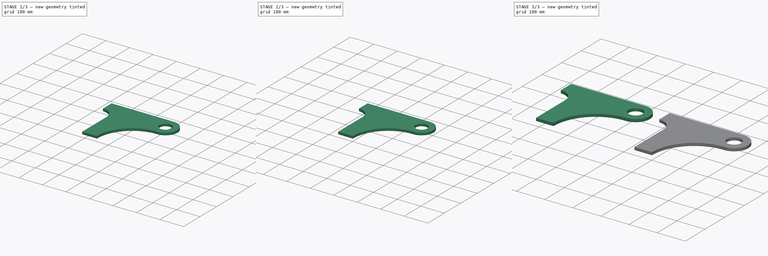
[diagram: build sequence overview — one tinted view per stage of 3, left to right]
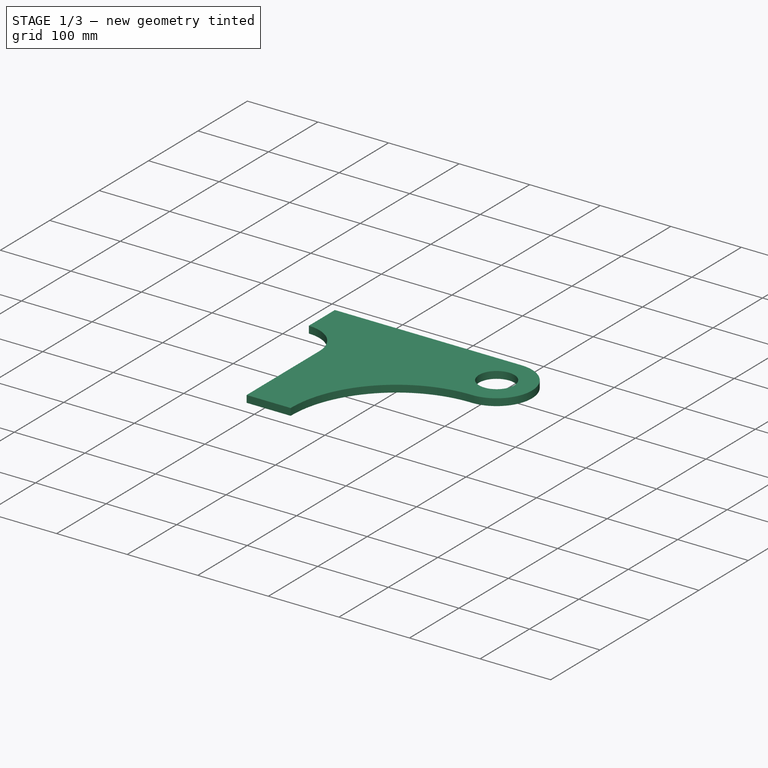
[diagram: stage 1 of 3 — iso view after this stage's code; geometry added in this stage tinted green]
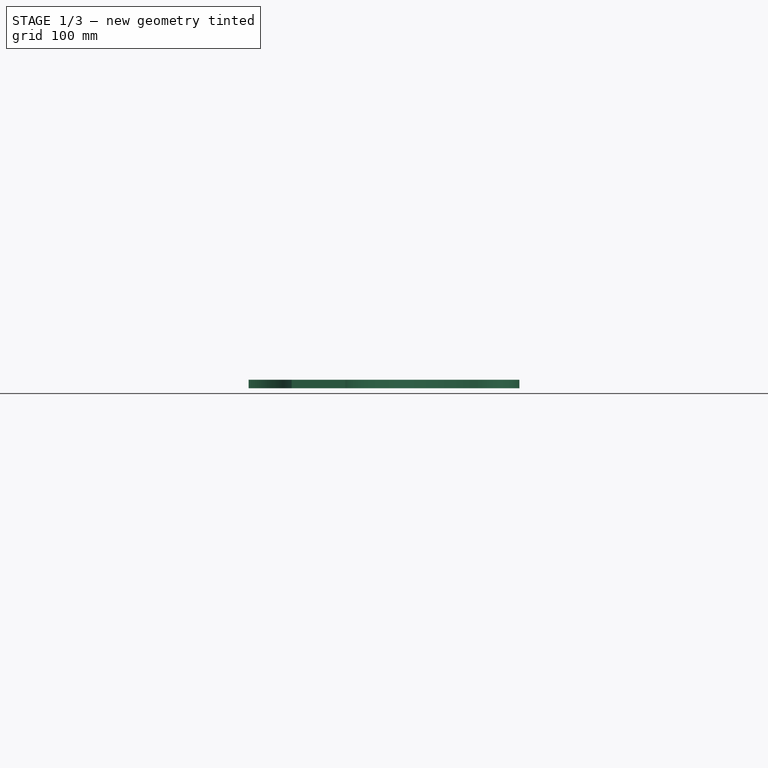
[diagram: stage 1 of 3 — front view after this stage's code; geometry added in this stage tinted green]
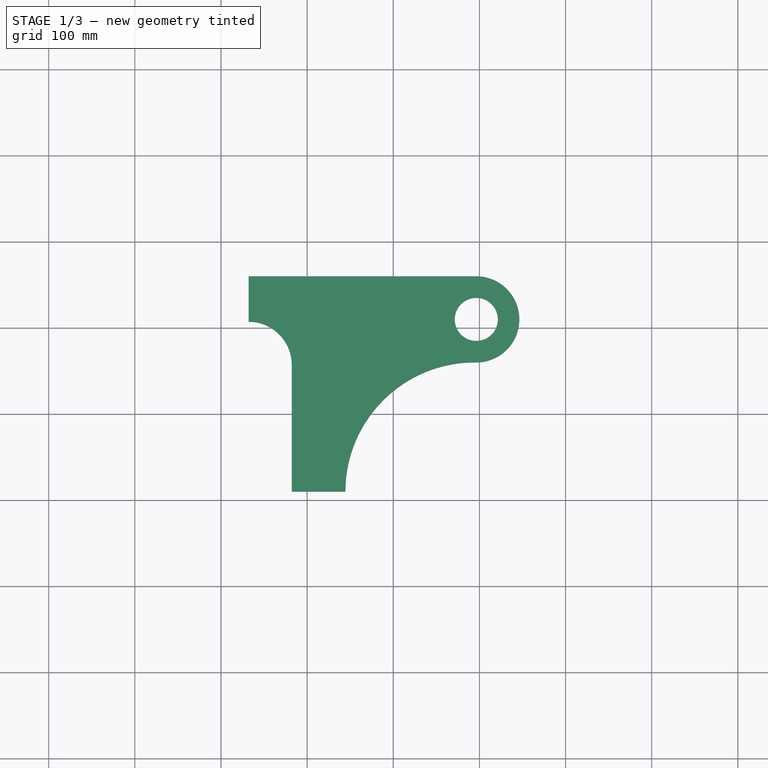
[diagram: stage 1 of 3 — top view after this stage's code; geometry added in this stage tinted green]
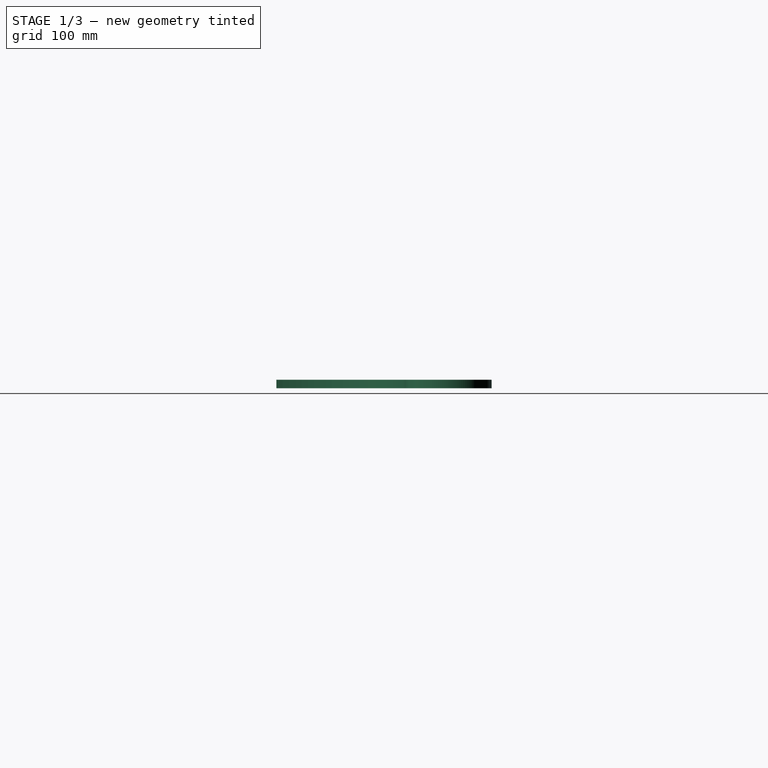
[diagram: stage 1 of 3 — right view after this stage's code; geometry added in this stage tinted green]
FCSTD DOCUMENT  (FreeCAD 0.17R13327 (Git))
Label: ArchPanel2
License: All rights reserved
LicenseURL: http://en.wikipedia.org/wiki/All_rights_reserved
objects: Part::FeaturePython×6, Sketcher::SketchObject×2, PartDesign::Pad×1, PartDesign::Pocket×1, PartDesign::Body×1
note: 13 computed .brp shape members not serialized (recipe doc carries the construction recipe); baked Part::Feature solids carry a one-line shape summary decoded from their .brp

FEATURE [Sketcher::SketchObject] Sketch
  MapMode = 5
  Support = -> [XY_Plane]
  sketch-geometry (7):
    g0: LineSegment StartX=-17.9048 StartY=-89.9518 StartZ=0 EndX=44.4546 EndY=-89.9518 EndZ=0
    g1: ArcOfCircle CenterX=194.455 CenterY=-89.9518 CenterZ=0 NormalX=0 NormalY=0 NormalZ=1 AngleXU=0 Radius=150 StartAngle=1.56117 EndAngle=3.14159
    g2: ArcOfCircle CenterX=196.379 CenterY=110.039 CenterZ=0 NormalX=0 NormalY=0 NormalZ=1 AngleXU=0 Radius=50 StartAngle=4.70277 EndAngle=7.85398
    g3: LineSegment StartX=196.379 StartY=160.039 StartZ=0 EndX=-67.9048 EndY=160.039 EndZ=0
    g4: LineSegment StartX=-67.9048 StartY=160.039 StartZ=0 EndX=-67.9048 EndY=107.322 EndZ=0
    g5: ArcOfCircle CenterX=-67.9048 CenterY=57.3222 CenterZ=0 NormalX=0 NormalY=0 NormalZ=1 AngleXU=0 Radius=50 StartAngle=6.28319 EndAngle=7.85398
    g6: LineSegment StartX=-17.9048 StartY=57.3222 StartZ=0 EndX=-17.9048 EndY=-89.9518 EndZ=0
  constraints (16):
    c: Horizontal(g0)
    c: Perpendicular(g0,g1) = 4.71239
    c: Tangent(g1,g2) = 1.5708
    c: Coincident(g2,g3)
    c: Horizontal(g3)
    c: Coincident(g3,g4)
    c: Vertical(g4)
    c: Perpendicular(g4,g5) = 4.71239
    c: Coincident(g5,g6)
    c: Coincident(g6,g0)
    c: Vertical(g6)
    c: Tangent(g5,g6)
    c: Radius(g5) = 50
    c: Tangent(g3,g2)
    c: Radius(g2) = 50
    c: Radius(g1) = 150
FEATURE [PartDesign::Pad] Pad
  Length = 10
  Length2 = 100
  Profile = -> Sketch
  Type = 0
FEATURE [Sketcher::SketchObject] Sketch001
  ExternalGeometry = -> [Pad]
  MapMode = 5
  Placement = pos=(0,0,10) rot=(0,0,1;0rad)
  Support = -> [Pad]
  sketch-geometry (1):
    g0: Circle CenterX=196.379 CenterY=110.039 CenterZ=0 NormalX=0 NormalY=0 NormalZ=1 AngleXU=0 Radius=25
  constraints (2):
    c: Coincident(g0,g-3)
    c: Radius(g0) = 25
FEATURE [PartDesign::Pocket] Pocket
  BaseFeature = -> Pad
  Length = 5
  Length2 = 100
  Profile = -> Sketch001
  Type = 1
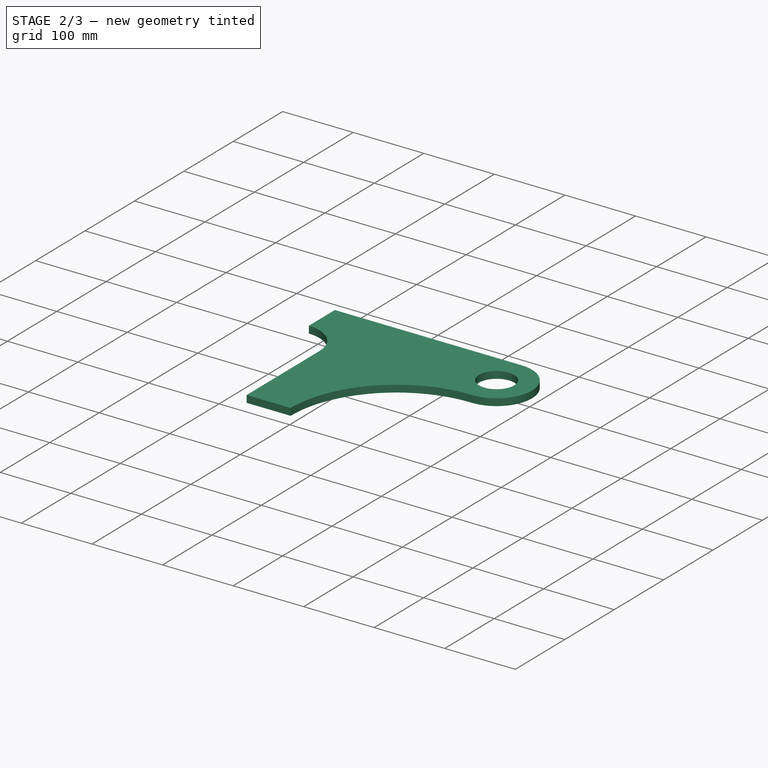
[diagram: stage 2 of 3 — iso view after this stage's code; geometry added in this stage tinted green]
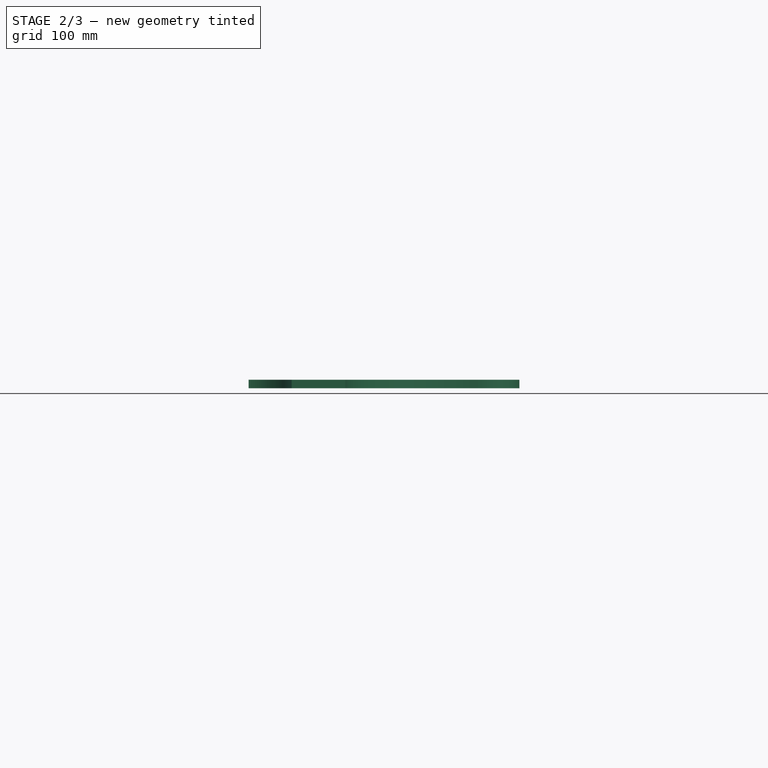
[diagram: stage 2 of 3 — front view after this stage's code; geometry added in this stage tinted green]
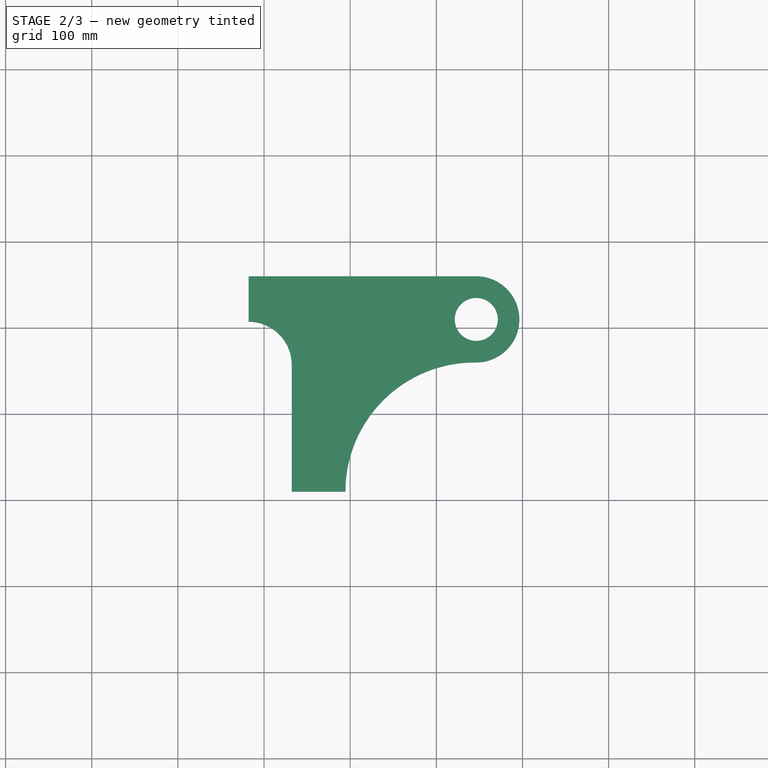
[diagram: stage 2 of 3 — top view after this stage's code; geometry added in this stage tinted green]
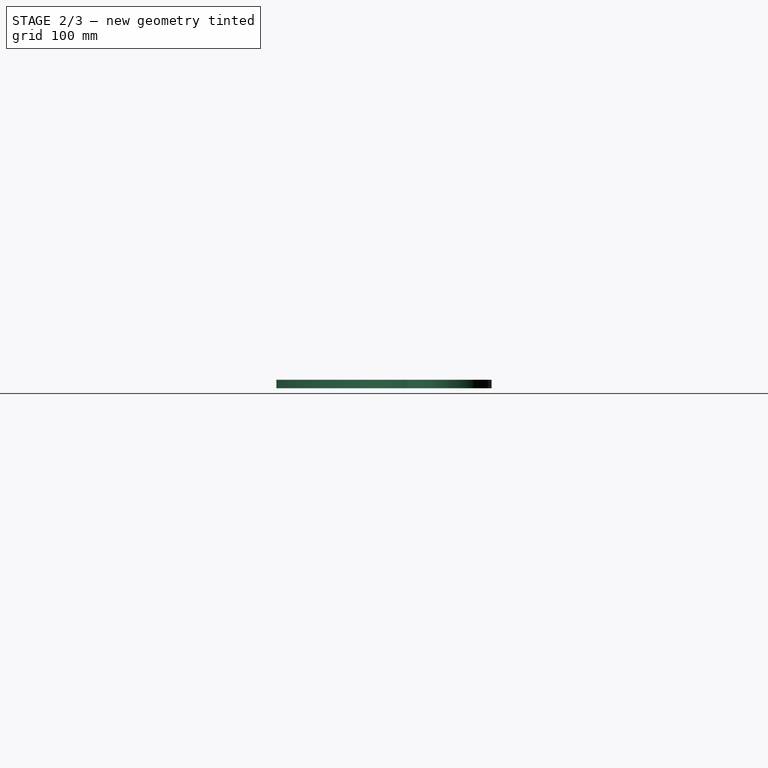
[diagram: stage 2 of 3 — right view after this stage's code; geometry added in this stage tinted green]
FEATURE [PartDesign::Body] Body
  Group = -> [Sketch,Pad,Sketch001,Pocket]
  Origin = -> BodyOrigin
  Tip = -> Pocket
FEATURE [Part::FeaturePython] Clone  label="Body001"  # Draft clone (typed FeaturePython)
  AttacherType = Attacher::AttachEngine3D
  Objects = -> [Body]
  Placement = pos=(350,0,0) rot=(0,0,1;0rad)
  Scale = (1,1,1)
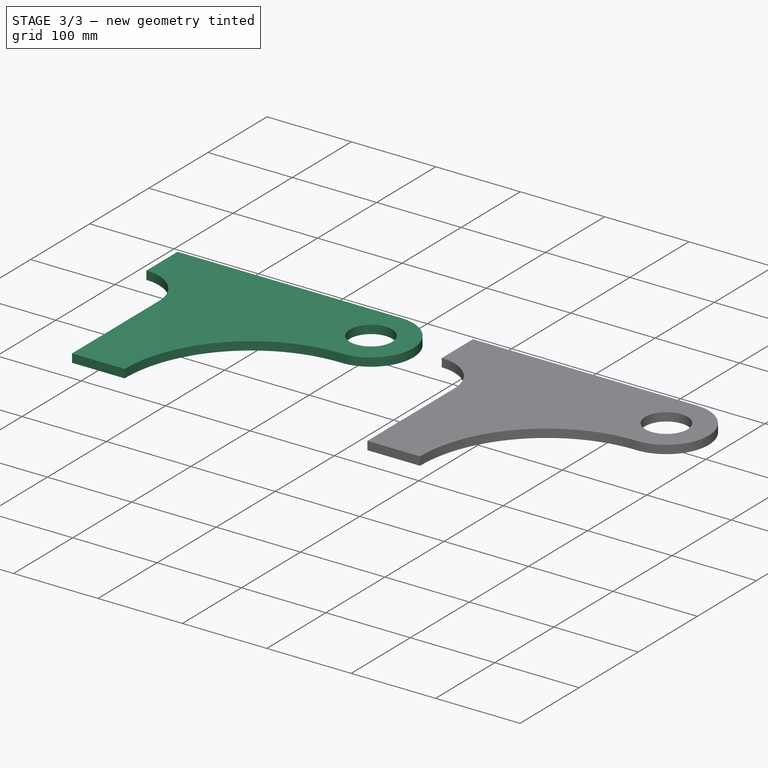
[diagram: stage 3 of 3 — iso view after this stage's code; geometry added in this stage tinted green]
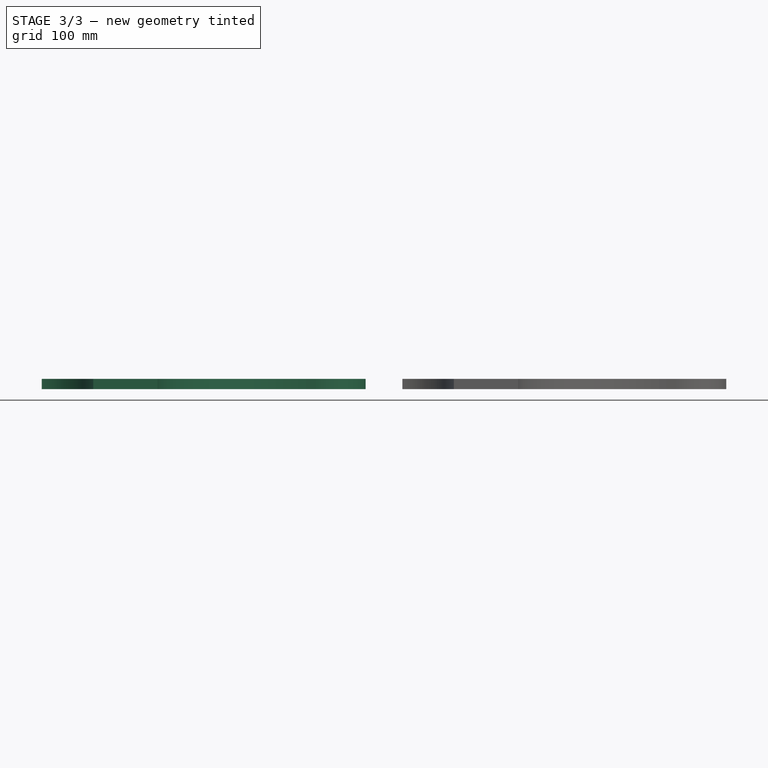
[diagram: stage 3 of 3 — front view after this stage's code; geometry added in this stage tinted green]
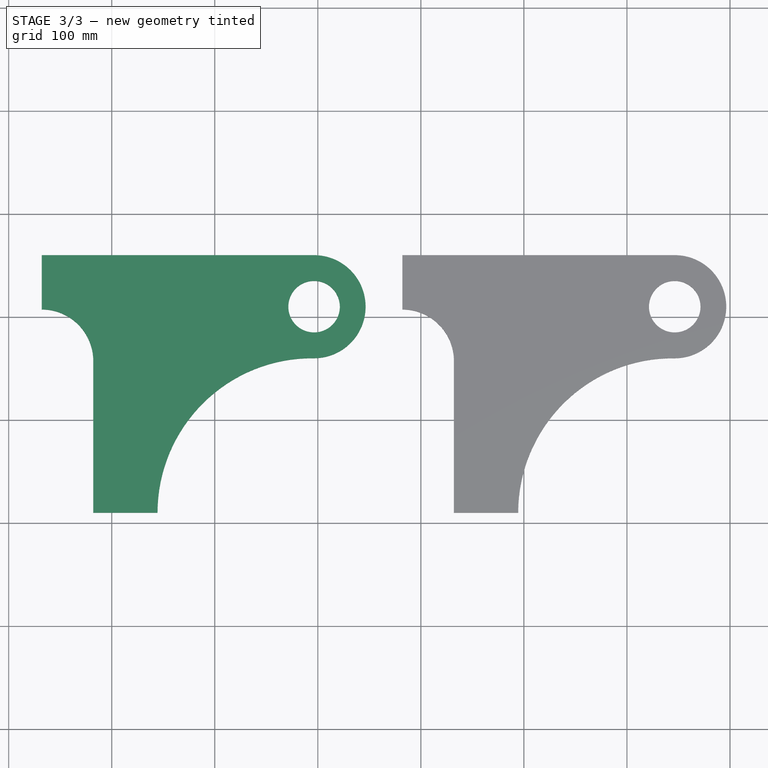
[diagram: stage 3 of 3 — top view after this stage's code; geometry added in this stage tinted green]
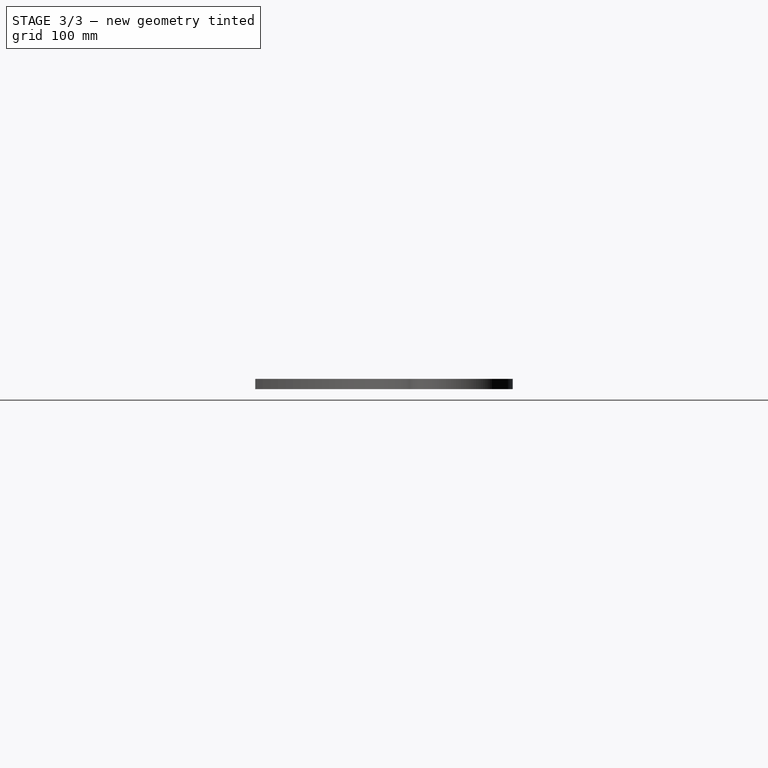
[diagram: stage 3 of 3 — right view after this stage's code; geometry added in this stage tinted green]
FEATURE [Part::FeaturePython] Panel  # WARN: FeaturePython — macro-defined, semantics opaque (R4)
  Area = 0
  Base = -> Pocket
  FaceMaker = 0
  HorizontalArea = 0
  Length = 0
  MoveWithHost = false
  Normal = (0,0,0)
  PerimeterLength = 0
  Role = 0
  Sheets = 1
  Thickness = 10
  VerticalArea = 0
  WaveDirection = 0
  WaveHeight = 0
  WaveLength = 0
  WaveType = 0
  Width = 0
FEATURE [Part::FeaturePython] Panel001  # WARN: FeaturePython — macro-defined, semantics opaque (R4)
  Area = 0
  Base = -> Clone
  FaceMaker = 0
  HorizontalArea = 0
  Length = 0
  MoveWithHost = false
  Normal = (0,0,0)
  PerimeterLength = 0
  Role = 0
  Sheets = 1
  Thickness = 10
  VerticalArea = 0
  WaveDirection = 0
  WaveHeight = 0
  WaveLength = 0
  WaveType = 0
  Width = 0
FEATURE [Part::FeaturePython] PanelView  label="View of Panel"  # WARN: FeaturePython — macro-defined, semantics opaque (R4)
  Placement = pos=(-169.826,-0.108166,0) rot=(0,0,1;0rad)
  Source = -> Panel
  TagPosition = (0,0,0)
  TagRotation = 0
  TagSize = 10
  TagText = %tag%
FEATURE [Part::FeaturePython] PanelView001  label="View of Panel001"  # WARN: FeaturePython — macro-defined, semantics opaque (R4)
  Placement = pos=(180.174,-0.108166,0) rot=(0,0,1;0rad)
  Source = -> Panel001
  TagPosition = (0,0,0)
  TagRotation = 0
  TagSize = 10
  TagText = %tag%
FEATURE [Part::FeaturePython] PanelSheet  # WARN: FeaturePython — macro-defined, semantics opaque (R4)
  FillRatio = 0
  Group = -> [PanelView,PanelView001]
  Height = 300
  Placement = pos=(350,150,0) rot=(0,0,1;0rad)
  TagPosition = (0,0,0)
  TagRotation = 0
  TagSize = 10
  Width = 700
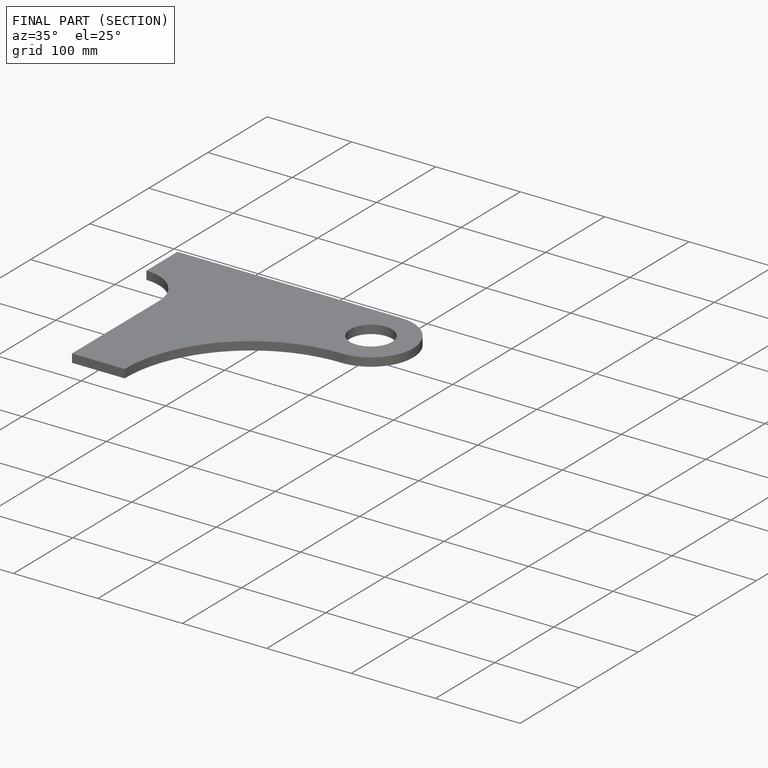
[diagram: finished part — half-section view (interior)]
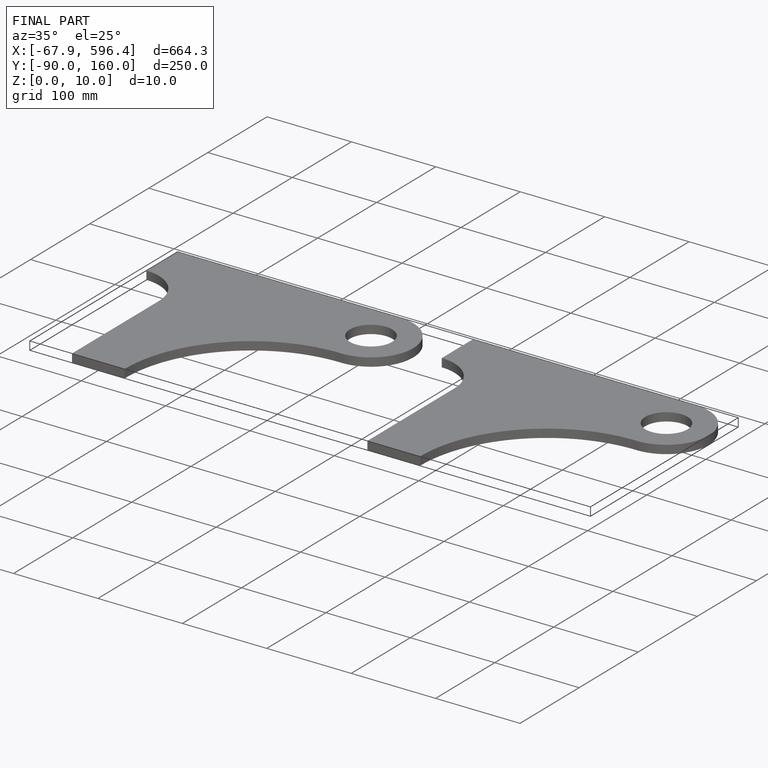
[diagram: finished part — iso view with bounding-box wireframe]
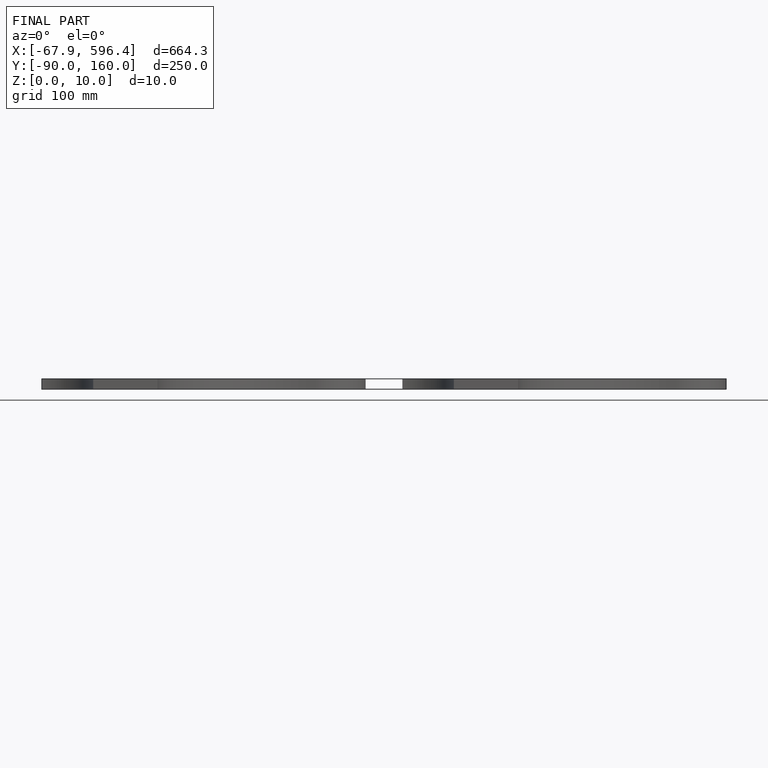
[diagram: finished part — front view with bounding-box wireframe]
